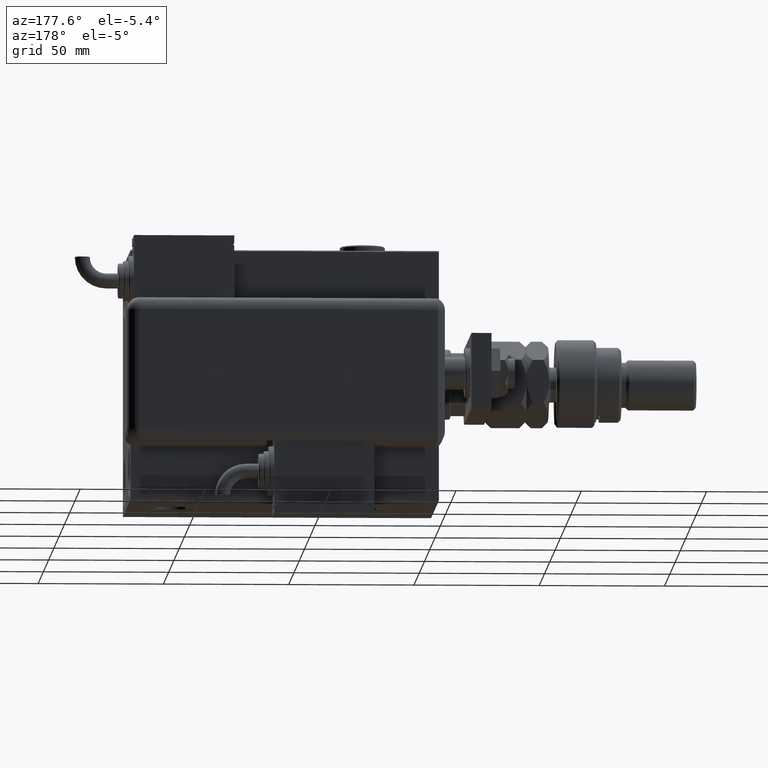
[diagram: clean part render]
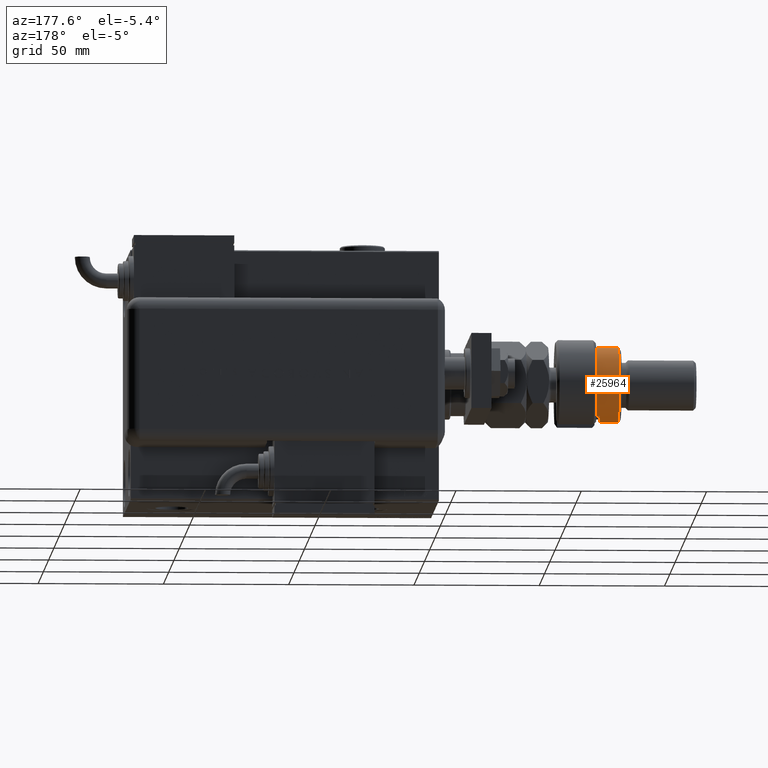
[diagram: same view with one face highlighted and labeled with its STEP entity id]
A machine part, auxiliary view. The second image highlights one B-rep face of the part: STEP entity #25964.
In plain terms, the highlighted cylindrical surface (partial cylindrical patch) has radius 15 mm, axis along (1, -0, -0).
Its self-contained STEP definition (entity closure, byte-faithful):
#472 = CARTESIAN_POINT ( 'NONE',  ( -15.00000000000000000, 0.000000000000000000, 26.00000000000000355 ) ) ;
#2475 = EDGE_CURVE ( 'NONE', #15398, #9864, #19221, .T. ) ;
#3968 = DIRECTION ( 'NONE',  ( -0.000000000000000000, -0.000000000000000000, -1.000000000000000000 ) ) ;
#7036 = EDGE_CURVE ( 'NONE', #10379, #20625, #61569, .T. ) ;
#7082 = EDGE_LOOP ( 'NONE', ( #51689, #48888, #42415, #14217, #54229, #55316 ) ) ;
#7309 = FACE_OUTER_BOUND ( 'NONE', #7082, .T. ) ;
#9625 = DIRECTION ( 'NONE',  ( 1.000000000000000000, 0.000000000000000000, 0.000000000000000000 ) ) ;
#9697 = EDGE_CURVE ( 'NONE', #20625, #17563, #37148, .T. ) ;
#9864 = VERTEX_POINT ( 'NONE', #19007 ) ;
#10379 = VERTEX_POINT ( 'NONE', #42078 ) ;
#10868 = EDGE_CURVE ( 'NONE', #15398, #46145, #15289, .T. ) ;
#14217 = ORIENTED_EDGE ( 'NONE', *, *, #9697, .T. ) ;
#15289 = CIRCLE ( 'NONE', #22485, 15.00000000000000000 ) ;
#15398 = VERTEX_POINT ( 'NONE', #45796 ) ;
#17533 = DIRECTION ( 'NONE',  ( -0.000000000000000000, -0.000000000000000000, -1.000000000000000000 ) ) ;
#17563 = VERTEX_POINT ( 'NONE', #52117 ) ;
#17844 = CARTESIAN_POINT ( 'NONE',  ( 15.00000000000000000, 1.836970198721029589E-15, 26.00000000000000355 ) ) ;
#19007 = CARTESIAN_POINT ( 'NONE',  ( -15.00000000000000000, 0.000000000000000000, 17.50000000000000000 ) ) ;
#19022 = VECTOR ( 'NONE', #20179, 1000.000000000000000 ) ;
#19221 = LINE ( 'NONE', #472, #19022 ) ;
#20179 = DIRECTION ( 'NONE',  ( -0.000000000000000000, -0.000000000000000000, -1.000000000000000000 ) ) ;
#20625 = VERTEX_POINT ( 'NONE', #47380 ) ;
#21003 = DIRECTION ( 'NONE',  ( 0.000000000000000000, 0.000000000000000000, 1.000000000000000000 ) ) ;
#21296 = CARTESIAN_POINT ( 'NONE',  ( 15.00000000000000000, 1.836970198721029589E-15, 24.99999999999997868 ) ) ;
#22485 = AXIS2_PLACEMENT_3D ( 'NONE', #29986, #39369, #9625 ) ;
#22600 = CARTESIAN_POINT ( 'NONE',  ( 0.000000000000000000, 0.000000000000000000, 17.50000000000000000 ) ) ;
#23587 = AXIS2_PLACEMENT_3D ( 'NONE', #22600, #62075, #37475 ) ;
#25964 = ADVANCED_FACE ( 'NONE', ( #7309 ), #27006, .T. ) ;
#26684 = CIRCLE ( 'NONE', #23587, 15.00000000000000000 ) ;
#27006 = CYLINDRICAL_SURFACE ( 'NONE', #41565, 15.00000000000000000 ) ;
#27605 = VECTOR ( 'NONE', #21003, 1000.000000000000000 ) ;
#29537 = AXIS2_PLACEMENT_3D ( 'NONE', #39573, #63519, #34710 ) ;
#29986 = CARTESIAN_POINT ( 'NONE',  ( 0.000000000000000000, 0.000000000000000000, 24.99999999999997868 ) ) ;
#34710 = DIRECTION ( 'NONE',  ( 1.000000000000000000, 0.000000000000000000, 0.000000000000000000 ) ) ;
#37148 = LINE ( 'NONE', #50766, #27605 ) ;
#37475 = DIRECTION ( 'NONE',  ( -1.000000000000000000, 0.000000000000000000, 0.000000000000000000 ) ) ;
#39369 = DIRECTION ( 'NONE',  ( 0.000000000000000000, 0.000000000000000000, -1.000000000000000000 ) ) ;
#39573 = CARTESIAN_POINT ( 'NONE',  ( 0.000000000000000000, 0.000000000000000000, 16.00000000000000000 ) ) ;
#40561 = EDGE_CURVE ( 'NONE', #9864, #17563, #26684, .T. ) ;
#41565 = AXIS2_PLACEMENT_3D ( 'NONE', #42200, #3968, #41890 ) ;
#41890 = DIRECTION ( 'NONE',  ( -1.000000000000000000, 0.000000000000000000, 0.000000000000000000 ) ) ;
#42078 = CARTESIAN_POINT ( 'NONE',  ( 15.00000000000000000, 1.836970198721029589E-15, 16.00000000000000000 ) ) ;
#42200 = CARTESIAN_POINT ( 'NONE',  ( 0.000000000000000000, 0.000000000000000000, 26.00000000000000355 ) ) ;
#42415 = ORIENTED_EDGE ( 'NONE', *, *, #7036, .T. ) ;
#45796 = CARTESIAN_POINT ( 'NONE',  ( -15.00000000000000000, 0.000000000000000000, 24.99999999999997868 ) ) ;
#46145 = VERTEX_POINT ( 'NONE', #21296 ) ;
#47380 = CARTESIAN_POINT ( 'NONE',  ( -12.99038105676658006, 7.500000000000000000, 16.00000000000000000 ) ) ;
#47654 = VECTOR ( 'NONE', #17533, 1000.000000000000000 ) ;
#48888 = ORIENTED_EDGE ( 'NONE', *, *, #50616, .T. ) ;
#50616 = EDGE_CURVE ( 'NONE', #46145, #10379, #61850, .T. ) ;
#50766 = CARTESIAN_POINT ( 'NONE',  ( -12.99038105676658006, 7.500000000000000000, 26.00000000000000355 ) ) ;
#51689 = ORIENTED_EDGE ( 'NONE', *, *, #10868, .T. ) ;
#52117 = CARTESIAN_POINT ( 'NONE',  ( -12.99038105676658006, 7.500000000000000000, 17.50000000000000000 ) ) ;
#54229 = ORIENTED_EDGE ( 'NONE', *, *, #40561, .F. ) ;
#55316 = ORIENTED_EDGE ( 'NONE', *, *, #2475, .F. ) ;
#61569 = CIRCLE ( 'NONE', #29537, 15.00000000000000000 ) ;
#61850 = LINE ( 'NONE', #17844, #47654 ) ;
#62075 = DIRECTION ( 'NONE',  ( 0.000000000000000000, 0.000000000000000000, -1.000000000000000000 ) ) ;
#63519 = DIRECTION ( 'NONE',  ( 0.000000000000000000, 0.000000000000000000, 1.000000000000000000 ) ) ;